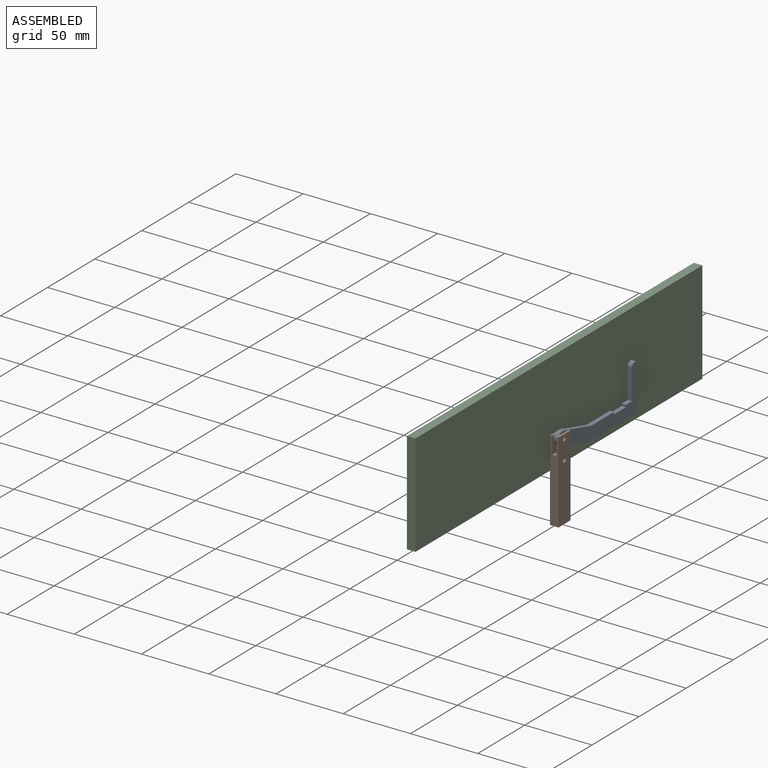
[diagram: assembled view]
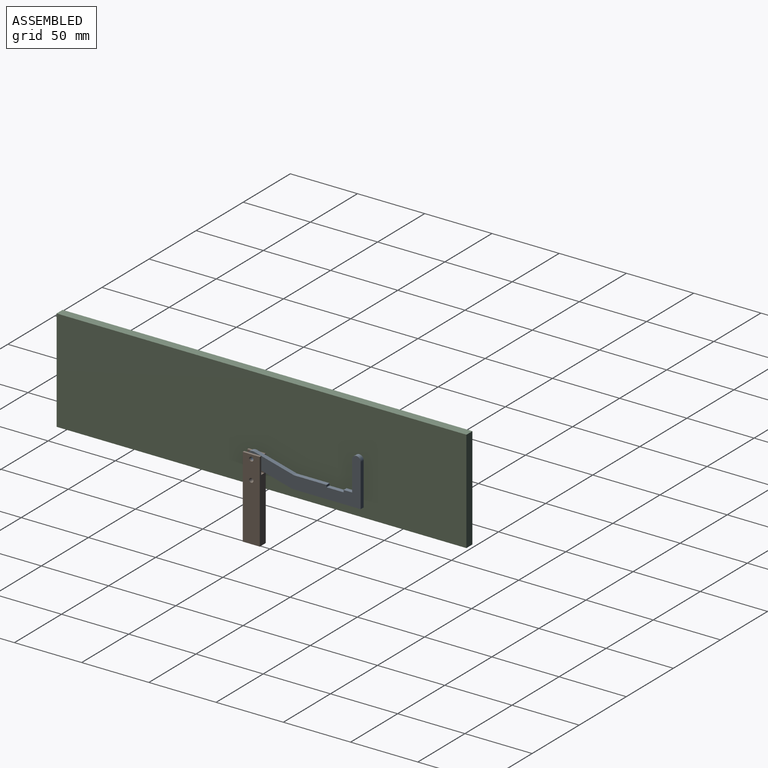
[diagram: assembled view, second angle]
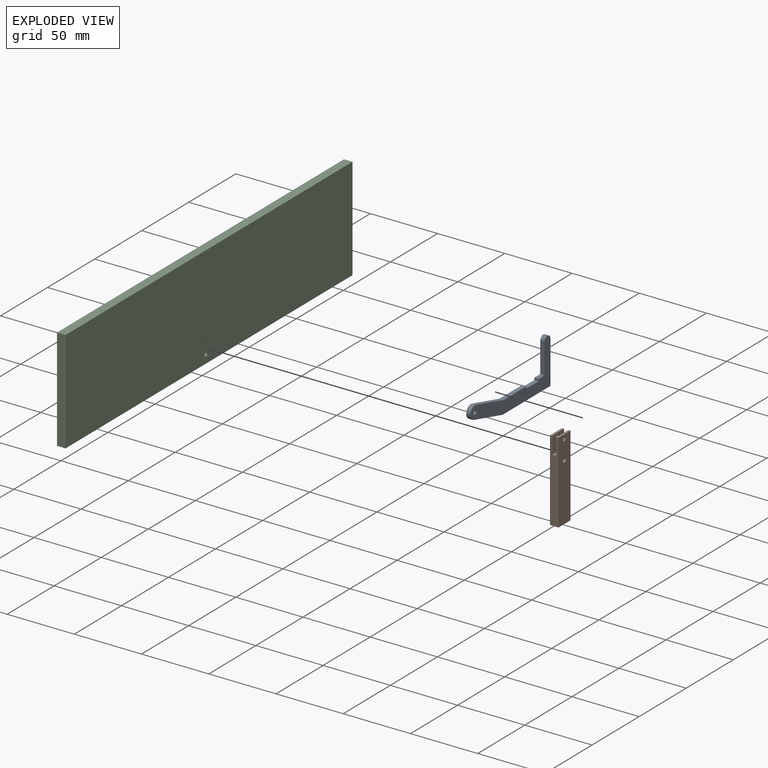
[diagram: exploded view]
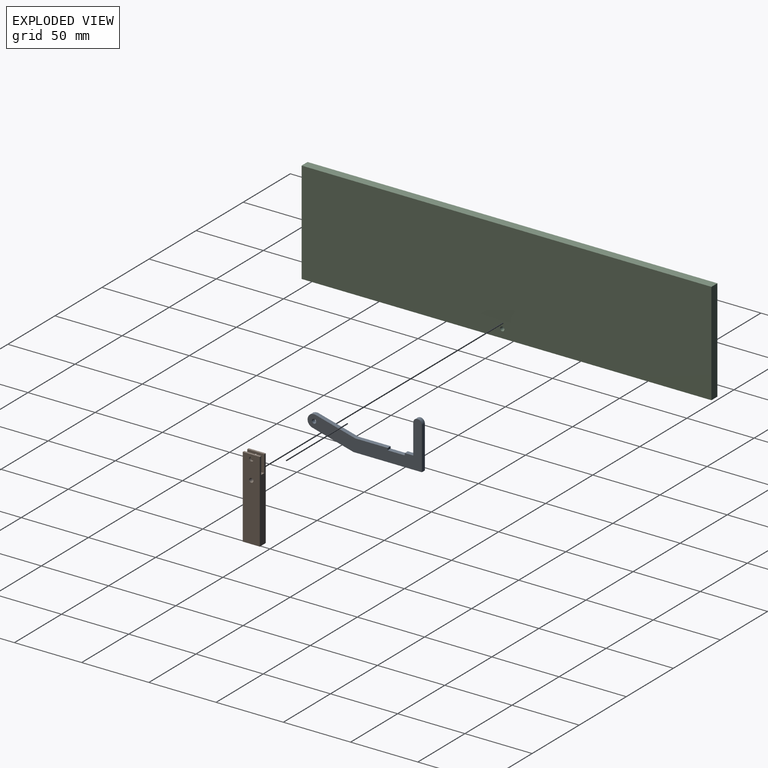
[diagram: exploded view, second angle]
ASSEMBLY  parts=3 mates=2
PART A: 15 faces, bbox 3.2x85x34.9 mm
  f0: plane 24.15x3.18mm, normal (0,0,1), area 76.7mm2, adj f1,f9,f10,f13
  f1: plane 29.46x7.89mm, normal (0,0.26,0.97), area 96.8mm2, adj f0,f2,f9,f10
  f2: cylinder r=4.76mm len=9.36mm, axis (-1,0,0), area 47.5mm2, adj f1,f3,f9,f10
  f3: plane 30.67x8.22mm, normal (0,-0.26,-0.97), area 100.8mm2, adj f2,f4,f9,f10
  f4: plane 50.8x3.18mm, normal (0,0,-1), area 161.3mm2, adj f3,f5,f9,f10
  f5: plane 31.75x3.18mm, normal (0,1,0), area 100.8mm2, adj f4,f6,f9,f10
  f6: cylinder r=3.17mm len=6.35mm, axis (-1,0,0), area 31.7mm2, adj f5,f7,f9,f10
  f7: plane 22.23x3.18mm, normal (0,-1,0), area 70.6mm2, adj f6,f8,f9,f10
  f8: plane 6.35x3.18mm, normal (0,0,1), area 20.2mm2, adj f7,f9,f10,f12
  f9: plane 85x34.93mm, normal (1,0,0), area 938.9mm2, adj f0,f1,f2,f3,f4,f5,f6,f7
  f10: plane 85x34.93mm, normal (-1,0,0), area 938.9mm2, adj f0,f1,f2,f3,f4,f5,f6,f7
  f11: plane 12.7x3.18mm, normal (0,0,1), area 40.3mm2, adj f9,f10,f12,f13
  f12: plane 3.18x1.59mm, normal (0,-1,0), area 5mm2, adj f8,f9,f10,f11
  f13: plane 3.18x1.59mm, normal (0,1,0), area 5mm2, adj f0,f9,f10,f11
  f14: cylinder r=1.59mm len=3.18mm, axis (-1,0,0), area 31.7mm2, adj f9,f10
PART B: 13 faces, bbox 6.4x12.7x60.3 mm
  f0: plane 60.33x6.35mm, normal (0,-1,0), area 342.7mm2, adj f1,f3,f5,f6,f7,f10,f11,f12
  f1: plane 12.7x1.59mm, normal (0,0,1), area 20.2mm2, adj f0,f4,f6,f11
  f2: cylinder r=1.59mm len=3.18mm, axis (1,0,0), area 15.8mm2, adj f6,f11
  f3: plane 12.7x6.35mm, normal (0,0,-1), area 80.6mm2, adj f0,f4,f6,f7
  f4: plane 60.33x6.35mm, normal (0,1,0), area 342.7mm2, adj f1,f3,f5,f6,f7,f10,f11,f12
  f5: plane 12.7x1.59mm, normal (0,0,1), area 20.2mm2, adj f0,f4,f7,f10
  f6: plane 60.33x12.7mm, normal (1,0,0), area 750.3mm2, adj f0,f1,f2,f3,f4,f8
  f7: plane 60.33x12.7mm, normal (-1,0,0), area 750.3mm2, adj f0,f3,f4,f5,f8,f9
  f8: cylinder r=1.59mm len=6.35mm, axis (1,0,0), area 63.3mm2, adj f6,f7
  f9: cylinder r=1.59mm len=3.18mm, axis (1,0,0), area 15.8mm2, adj f7,f10
  f10: plane 12.7x12.7mm, normal (1,0,0), area 153.4mm2, adj f0,f4,f5,f9,f12
  f11: plane 12.7x12.7mm, normal (-1,0,0), area 153.4mm2, adj f0,f1,f2,f4,f12
  f12: plane 12.7x3.18mm, normal (0,0,1), area 40.3mm2, adj f0,f4,f10,f11
PART C: 7 faces, bbox 6.4x304.8x76.2 mm
  f0: plane 304.8x6.35mm, normal (0,0,1), area 1935.5mm2, adj f1,f3,f4,f5
  f1: plane 76.2x6.35mm, normal (0,-1,0), area 483.9mm2, adj f0,f2,f4,f5
  f2: plane 304.8x6.35mm, normal (0,0,-1), area 1935.5mm2, adj f1,f3,f4,f5
  f3: plane 76.2x6.35mm, normal (0,1,0), area 483.9mm2, adj f0,f2,f4,f5
  f4: plane 304.8x76.2mm, normal (1,0,0), area 23217.8mm2, adj f0,f1,f2,f3,f6
  f5: plane 304.8x76.2mm, normal (-1,0,0), area 23217.8mm2, adj f0,f1,f2,f3,f6
  f6: cylinder r=1.59mm len=6.35mm, axis (-1,0,0), area 63.3mm2, adj f4,f5
PLACE A t=(6.35,47.62,-25.96)mm
PLACE B t=(6.35,-0.86,-57.59)mm
PLACE C t=(0,-4.04,4.32)mm fixed
MATE revolute C.f6 <-> B.f8  axis (1,0,0) through (3.18,-7.21,-14.73)mm
MATE revolute A.f2 <-> B.f2  axis (-1,0,0) through (7.94,-7.21,-0.44)mm
